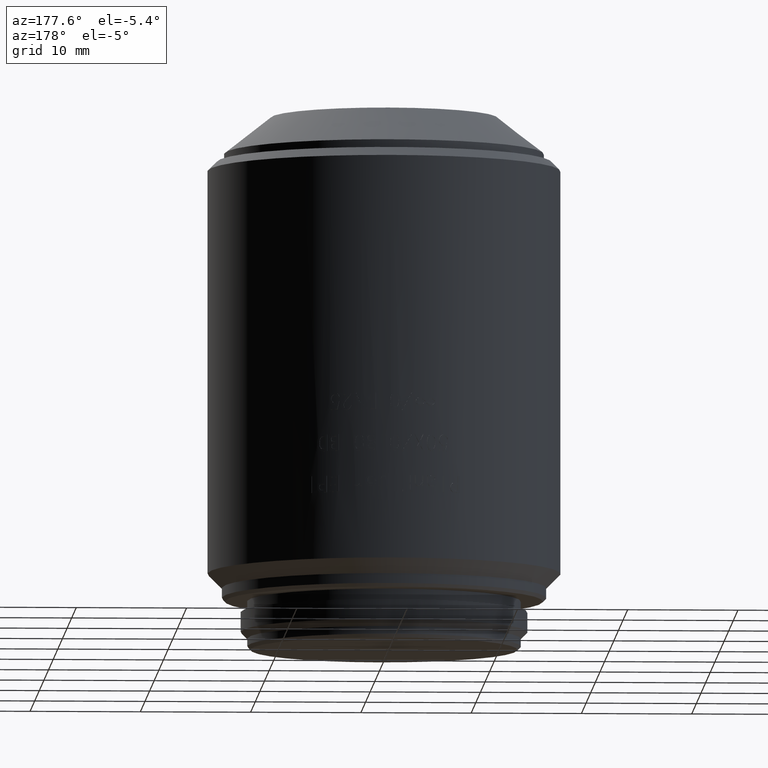
[diagram: clean part render]
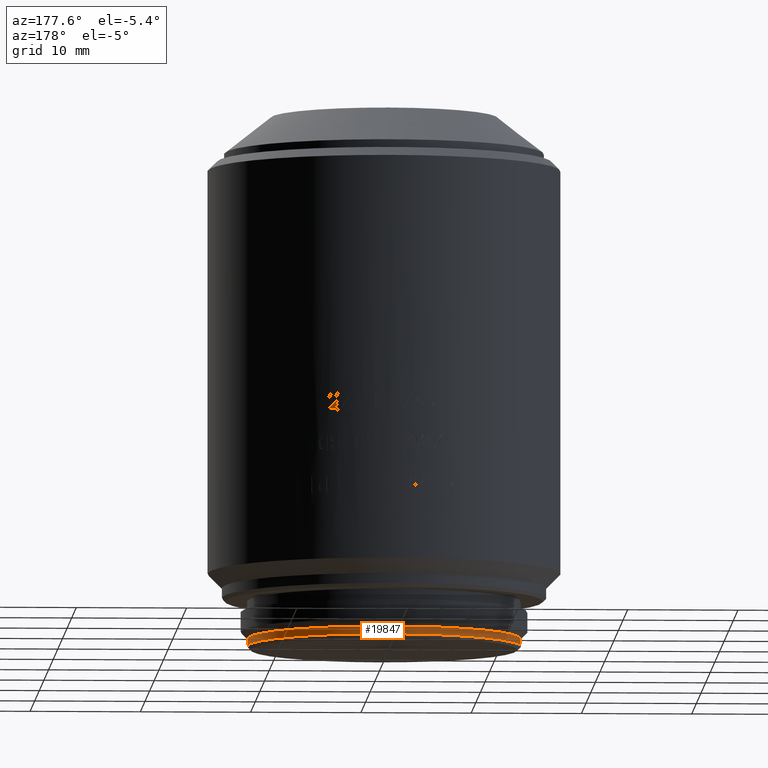
[diagram: same view with one face highlighted and labeled with its STEP entity id]
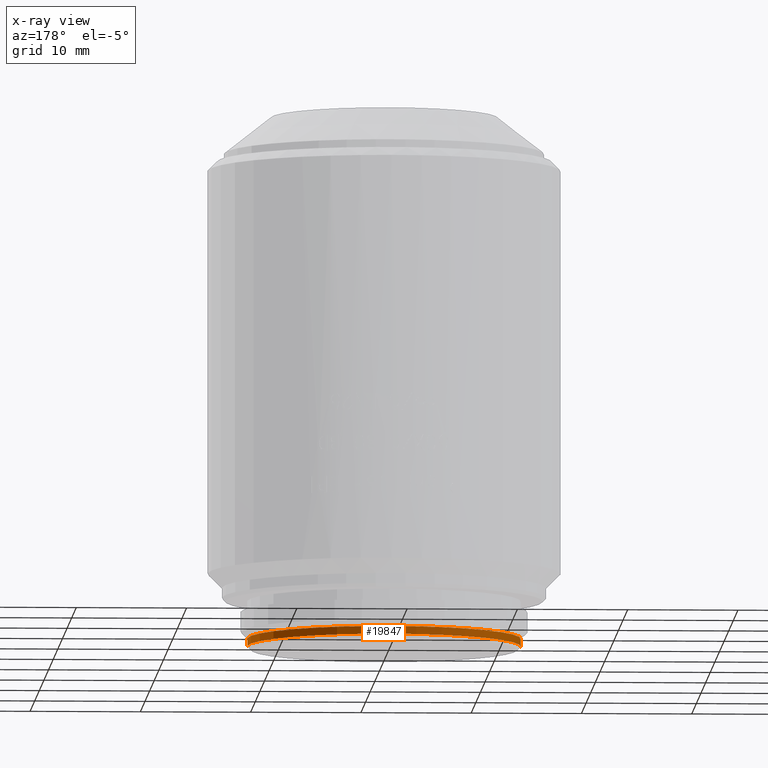
[diagram: x-ray of the same camera — body ghosted, the highlighted face saturated]
A machine part, auxiliary view. The second image highlights one B-rep face of the part: STEP entity #19847.
The next image is the same camera in x-ray: the body ghosted, the highlighted face saturated — about 0% of this face is hidden behind the body in this view.
In plain terms, the highlighted cylindrical surface (partial cylindrical patch) has radius 12.4 mm, axis along (0, 0, -1).
Its self-contained STEP definition (entity closure, byte-faithful):
#1446 = DIRECTION ( 'NONE',  ( 0.000000000000000000, 0.000000000000000000, -1.000000000000000000 ) ) ;
#1837 = CARTESIAN_POINT ( 'NONE',  ( 12.40000000000000036, 0.000000000000000000, 1.000000000000000000 ) ) ;
#2004 = EDGE_CURVE ( 'NONE', #13831, #22016, #2954, .T. ) ;
#2954 = CIRCLE ( 'NONE', #16396, 12.40000000000000036 ) ;
#3348 = EDGE_CURVE ( 'NONE', #15068, #13831, #23362, .T. ) ;
#4414 = DIRECTION ( 'NONE',  ( -1.000000000000000000, 0.000000000000000000, 0.000000000000000000 ) ) ;
#6068 = VERTEX_POINT ( 'NONE', #19477 ) ;
#6239 = CARTESIAN_POINT ( 'NONE',  ( 0.000000000000000000, 0.000000000000000000, 1.000000000000000000 ) ) ;
#6244 = VECTOR ( 'NONE', #10722, 1000.000000000000000 ) ;
#6794 = LINE ( 'NONE', #11133, #6244 ) ;
#7660 = ORIENTED_EDGE ( 'NONE', *, *, #3348, .T. ) ;
#9445 = CARTESIAN_POINT ( 'NONE',  ( 12.39999999999999680, 0.000000000000000000, 0.2999999999999999889 ) ) ;
#10722 = DIRECTION ( 'NONE',  ( 0.000000000000000000, 0.000000000000000000, -1.000000000000000000 ) ) ;
#10855 = DIRECTION ( 'NONE',  ( 0.000000000000000000, 0.000000000000000000, -1.000000000000000000 ) ) ;
#11133 = CARTESIAN_POINT ( 'NONE',  ( -12.40000000000000036, 0.000000000000000000, 1.000000000000000000 ) ) ;
#11137 = CARTESIAN_POINT ( 'NONE',  ( 0.000000000000000000, 0.000000000000000000, 0.2999999999999999889 ) ) ;
#12126 = CYLINDRICAL_SURFACE ( 'NONE', #13422, 12.40000000000000036 ) ;
#12866 = ORIENTED_EDGE ( 'NONE', *, *, #17095, .F. ) ;
#13011 = ORIENTED_EDGE ( 'NONE', *, *, #20122, .T. ) ;
#13422 = AXIS2_PLACEMENT_3D ( 'NONE', #25064, #27039, #22941 ) ;
#13519 = DIRECTION ( 'NONE',  ( 0.000000000000000000, 0.000000000000000000, 1.000000000000000000 ) ) ;
#13831 = VERTEX_POINT ( 'NONE', #9445 ) ;
#15068 = VERTEX_POINT ( 'NONE', #1837 ) ;
#15629 = VECTOR ( 'NONE', #1446, 1000.000000000000000 ) ;
#16396 = AXIS2_PLACEMENT_3D ( 'NONE', #11137, #13519, #22095 ) ;
#17011 = EDGE_LOOP ( 'NONE', ( #13011, #7660, #22274, #12866 ) ) ;
#17095 = EDGE_CURVE ( 'NONE', #6068, #22016, #6794, .T. ) ;
#17762 = CARTESIAN_POINT ( 'NONE',  ( -12.39999999999999680, 1.518562030942717573E-15, 0.2999999999999999889 ) ) ;
#18299 = FACE_OUTER_BOUND ( 'NONE', #17011, .T. ) ;
#19477 = CARTESIAN_POINT ( 'NONE',  ( -12.40000000000000036, 1.555301434917138433E-15, 1.000000000000000000 ) ) ;
#19847 = ADVANCED_FACE ( 'NONE', ( #18299 ), #12126, .T. ) ;
#20122 = EDGE_CURVE ( 'NONE', #6068, #15068, #24203, .T. ) ;
#22016 = VERTEX_POINT ( 'NONE', #17762 ) ;
#22095 = DIRECTION ( 'NONE',  ( 1.000000000000000000, 0.000000000000000000, 0.000000000000000000 ) ) ;
#22274 = ORIENTED_EDGE ( 'NONE', *, *, #2004, .T. ) ;
#22401 = AXIS2_PLACEMENT_3D ( 'NONE', #6239, #10855, #4414 ) ;
#22941 = DIRECTION ( 'NONE',  ( -1.000000000000000000, 0.000000000000000000, 0.000000000000000000 ) ) ;
#23362 = LINE ( 'NONE', #25494, #15629 ) ;
#24203 = CIRCLE ( 'NONE', #22401, 12.40000000000000036 ) ;
#25064 = CARTESIAN_POINT ( 'NONE',  ( 0.000000000000000000, 0.000000000000000000, 1.000000000000000000 ) ) ;
#25494 = CARTESIAN_POINT ( 'NONE',  ( 12.40000000000000036, 1.518562030942717967E-15, 1.000000000000000000 ) ) ;
#27039 = DIRECTION ( 'NONE',  ( 0.000000000000000000, 0.000000000000000000, -1.000000000000000000 ) ) ;